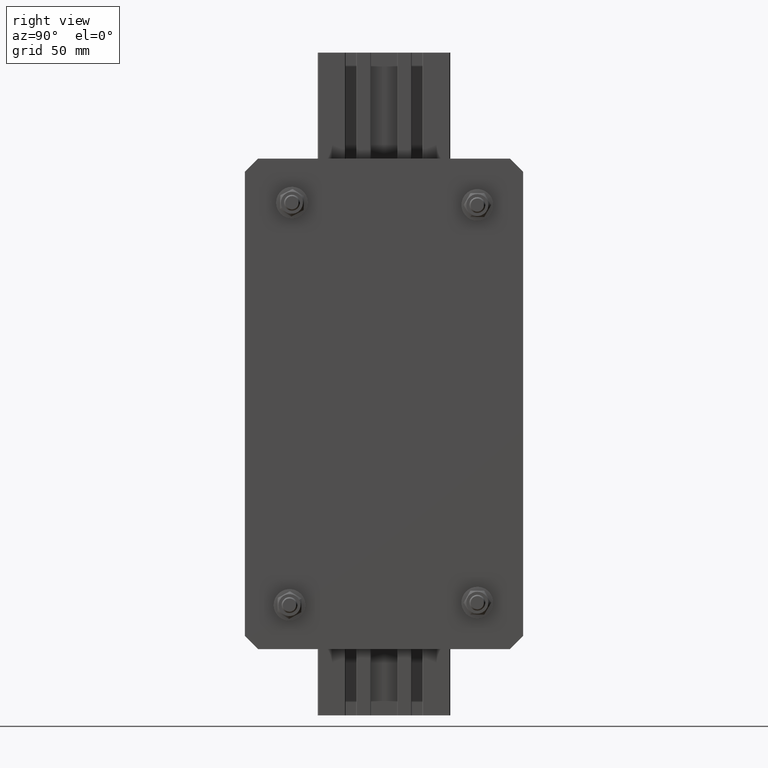
[diagram: clean part render]
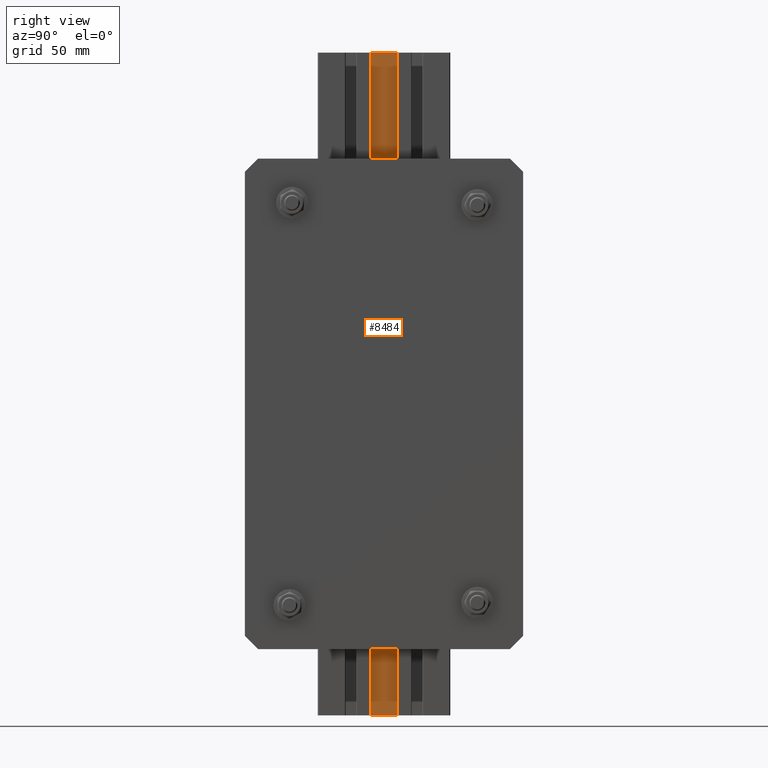
[diagram: same view with one face highlighted and labeled with its STEP entity id]
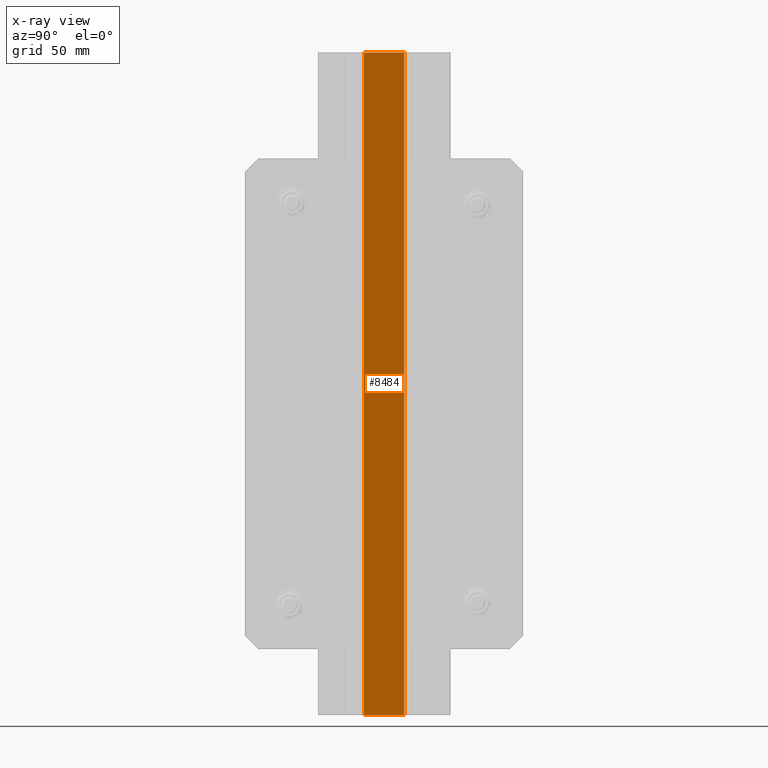
[diagram: x-ray of the same camera — body ghosted, the highlighted face saturated]
A machine part, right view. The second image highlights one B-rep face of the part: STEP entity #8484.
The next image is the same camera in x-ray: the body ghosted, the highlighted face saturated — about 0% of this face is hidden behind the body in this view.
In plain terms, the highlighted planar face has unit normal (1, 0, 0).
Its self-contained STEP definition (entity closure, byte-faithful):
#726=FACE_OUTER_BOUND('',#1200,.T.);
#1200=EDGE_LOOP('',(#6204,#6205,#6206,#6207));
#2032=LINE('',#12634,#2666);
#2194=LINE('',#13175,#2828);
#2289=LINE('',#13379,#2923);
#2290=LINE('',#13381,#2924);
#2666=VECTOR('',#10115,10.);
#2828=VECTOR('',#10563,10.);
#2923=VECTOR('',#10840,10.);
#2924=VECTOR('',#10843,10.);
#3308=VERTEX_POINT('',#12631);
#3309=VERTEX_POINT('',#12633);
#3544=VERTEX_POINT('',#13172);
#3545=VERTEX_POINT('',#13174);
#4180=EDGE_CURVE('',#3308,#3309,#2032,.T.);
#4450=EDGE_CURVE('',#3544,#3545,#2194,.T.);
#4553=EDGE_CURVE('',#3544,#3309,#2289,.T.);
#4554=EDGE_CURVE('',#3545,#3308,#2290,.T.);
#6204=ORIENTED_EDGE('',*,*,#4553,.T.);
#6205=ORIENTED_EDGE('',*,*,#4180,.F.);
#6206=ORIENTED_EDGE('',*,*,#4554,.F.);
#6207=ORIENTED_EDGE('',*,*,#4450,.F.);
#8125=PLANE('',#9389);
#8484=ADVANCED_FACE('',(#726),#8125,.T.);
#9389=AXIS2_PLACEMENT_3D('',#13380,#10841,#10842);
#10115=DIRECTION('',(-2.18404529434441E-16,1.,0.));
#10563=DIRECTION('',(2.18404529434441E-16,-1.,0.));
#10840=DIRECTION('',(0.,0.,1.));
#10841=DIRECTION('center_axis',(1.,2.18404529434441E-16,0.));
#10842=DIRECTION('ref_axis',(-2.18404529434441E-16,1.,0.));
#10843=DIRECTION('',(0.,0.,1.));
#12631=CARTESIAN_POINT('',(10.4999999999788,-15.2500000000005,450.));
#12633=CARTESIAN_POINT('',(10.4999999999788,15.2500000000016,450.));
#12634=CARTESIAN_POINT('',(10.4999999999788,-15.2500000000005,450.));
#13172=CARTESIAN_POINT('',(10.4999999999788,15.2500000000016,-50.));
#13174=CARTESIAN_POINT('',(10.4999999999788,-15.2500000000005,-50.));
#13175=CARTESIAN_POINT('',(10.4999999999788,-15.2500000000005,-50.));
#13379=CARTESIAN_POINT('',(10.4999999999788,15.2500000000016,0.));
#13380=CARTESIAN_POINT('Origin',(10.4999999999788,-15.2500000000005,0.));
#13381=CARTESIAN_POINT('',(10.4999999999788,-15.2500000000005,0.));